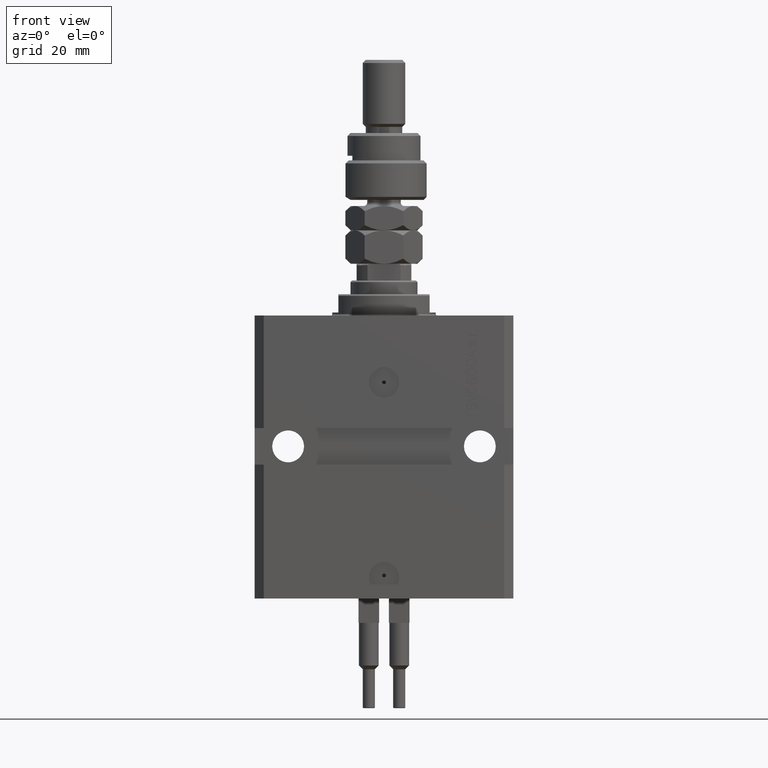
[diagram: clean part render]
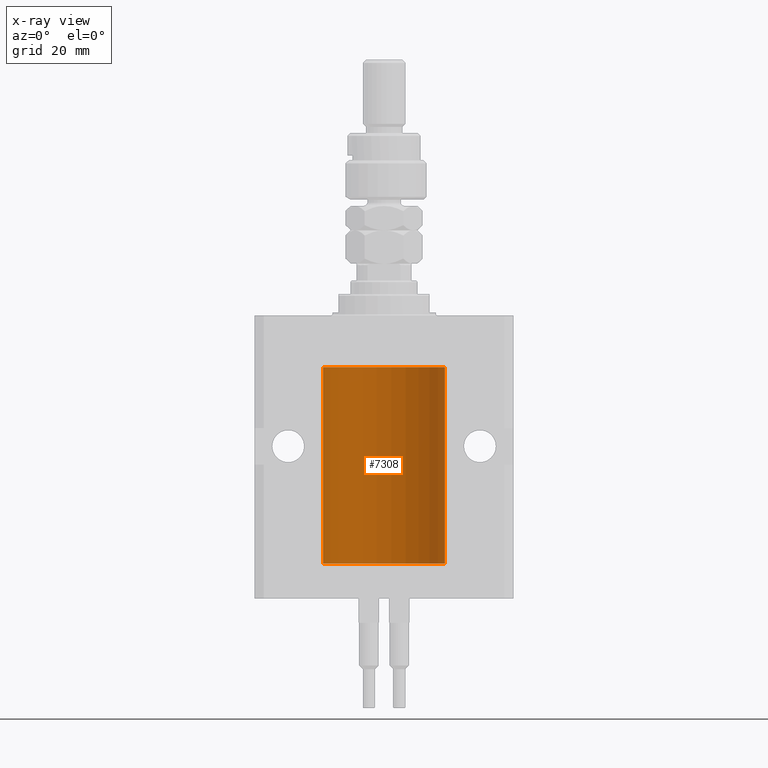
[diagram: x-ray — body ghosted, one internal face saturated and labeled with its STEP entity id]
A machine part, front view, then the same camera in x-ray: the body is ghosted and one INTERNAL B-rep face — a face not visible from any outside direction — is saturated and labeled: STEP entity #7308.
In plain terms, the highlighted cylindrical surface (partial cylindrical patch) has radius 20 mm, axis along (0, 0, 1).
Its self-contained STEP definition (entity closure, byte-faithful):
#780 = DIRECTION ( 'NONE',  ( -0.000000000000000000, -0.000000000000000000, 1.000000000000000000 ) ) ;
#785 = CARTESIAN_POINT ( 'NONE',  ( -19.99769349528941120, 0.3253804398728645242, -24.55855820727680339 ) ) ;
#1708 = CARTESIAN_POINT ( 'NONE',  ( -19.99253506710754991, 0.5587120480776742726, -79.32511620830248944 ) ) ;
#1848 = DIRECTION ( 'NONE',  ( 1.000000000000000000, 0.000000000000000000, 0.000000000000000000 ) ) ;
#3043 = ORIENTED_EDGE ( 'NONE', *, *, #45499, .F. ) ;
#3461 = VERTEX_POINT ( 'NONE', #42850 ) ;
#3499 = VECTOR ( 'NONE', #20952, 1000.000000000000000 ) ;
#4140 = LINE ( 'NONE', #12925, #3499 ) ;
#4440 = CARTESIAN_POINT ( 'NONE',  ( -19.99253506710754991, 0.5587120480776751608, -24.32511620830248589 ) ) ;
#5205 = CARTESIAN_POINT ( 'NONE',  ( -19.99023018003212471, 0.6250578794725500931, -24.16284809704970371 ) ) ;
#5758 = DIRECTION ( 'NONE',  ( 1.000000000000000000, 0.000000000000000000, 0.000000000000000000 ) ) ;
#6750 = AXIS2_PLACEMENT_3D ( 'NONE', #9887, #25938, #1848 ) ;
#7308 = ADVANCED_FACE ( 'NONE', ( #47801 ), #39774, .F. ) ;
#7990 = EDGE_CURVE ( 'NONE', #21036, #46071, #29907, .T. ) ;
#8343 = CARTESIAN_POINT ( 'NONE',  ( -20.00000000000000000, -2.867584836844214272E-15, -23.37500000000000000 ) ) ;
#8762 = VECTOR ( 'NONE', #46089, 1000.000000000000000 ) ;
#8834 = CARTESIAN_POINT ( 'NONE',  ( -19.99023380173166231, 0.6249420416828462832, -23.83670793056396064 ) ) ;
#9080 = CARTESIAN_POINT ( 'NONE',  ( -20.00000000000000000, 2.449293598294706513E-15, -81.59999999999999432 ) ) ;
#9702 = VECTOR ( 'NONE', #780, 1000.000000000000000 ) ;
#9887 = CARTESIAN_POINT ( 'NONE',  ( 0.000000000000000000, 0.000000000000000000, -17.00000000000000000 ) ) ;
#10137 = ORIENTED_EDGE ( 'NONE', *, *, #25457, .T. ) ;
#11148 = CARTESIAN_POINT ( 'NONE',  ( -19.99999999999999289, 0.08259581631026131909, -78.37499999999998579 ) ) ;
#11400 = CARTESIAN_POINT ( 'NONE',  ( -19.99638934703457238, 0.3843678041337651452, -78.50046362978099523 ) ) ;
#12459 = CARTESIAN_POINT ( 'NONE',  ( -20.00000000000010303, 3.580159278407742946E-13, -24.62500000000332889 ) ) ;
#12644 = AXIS2_PLACEMENT_3D ( 'NONE', #30343, #46114, #5758 ) ;
#12925 = CARTESIAN_POINT ( 'NONE',  ( 20.00000000000000000, 0.000000000000000000, -81.59999999999999432 ) ) ;
#12973 = CARTESIAN_POINT ( 'NONE',  ( -19.99638934703457593, 0.3843678041337688644, -23.50046362978100944 ) ) ;
#13059 = CARTESIAN_POINT ( 'NONE',  ( -20.00000000000000000, 2.449293598294706513E-15, -81.59999999999999432 ) ) ;
#14910 = VERTEX_POINT ( 'NONE', #17850 ) ;
#15110 = CARTESIAN_POINT ( 'NONE',  ( -20.00000000000000000, 2.449293598294706513E-15, -17.00000000000000000 ) ) ;
#15284 = CARTESIAN_POINT ( 'NONE',  ( -19.99766197842594551, 0.3150331617867603295, -78.45402070102504410 ) ) ;
#16946 = DIRECTION ( 'NONE',  ( -0.000000000000000000, -0.000000000000000000, 1.000000000000000000 ) ) ;
#16953 = ORIENTED_EDGE ( 'NONE', *, *, #31178, .T. ) ;
#17850 = CARTESIAN_POINT ( 'NONE',  ( -20.00000000000000000, -1.124177324826063808E-14, -78.37500000000000000 ) ) ;
#18005 = VERTEX_POINT ( 'NONE', #24067 ) ;
#19677 = CARTESIAN_POINT ( 'NONE',  ( -19.99023018003212471, 0.6250578794725522025, -79.16284809704971792 ) ) ;
#19927 = CARTESIAN_POINT ( 'NONE',  ( -19.99256581701871838, 0.5573276956901996870, -78.67348565770949165 ) ) ;
#20952 = DIRECTION ( 'NONE',  ( -0.000000000000000000, -0.000000000000000000, 1.000000000000000000 ) ) ;
#21036 = VERTEX_POINT ( 'NONE', #8343 ) ;
#22298 = CARTESIAN_POINT ( 'NONE',  ( -20.00000000000000000, 2.449293598294706513E-15, -81.59999999999999432 ) ) ;
#23180 = ORIENTED_EDGE ( 'NONE', *, *, #7990, .T. ) ;
#24067 = CARTESIAN_POINT ( 'NONE',  ( 20.00000000000000000, 0.000000000000000000, -17.00000000000000000 ) ) ;
#25457 = EDGE_CURVE ( 'NONE', #14910, #43699, #31448, .T. ) ;
#25643 = ORIENTED_EDGE ( 'NONE', *, *, #43207, .F. ) ;
#25938 = DIRECTION ( 'NONE',  ( 0.000000000000000000, 0.000000000000000000, 1.000000000000000000 ) ) ;
#26228 = ORIENTED_EDGE ( 'NONE', *, *, #30959, .T. ) ;
#28224 = CARTESIAN_POINT ( 'NONE',  ( -20.00000000000010303, 3.580159286679549072E-13, -79.62500000000332534 ) ) ;
#29100 = VECTOR ( 'NONE', #16946, 1000.000000000000000 ) ;
#29550 = EDGE_LOOP ( 'NONE', ( #3043, #36791, #16953, #26228, #25643, #23180, #33211, #10137 ) ) ;
#29813 = AXIS2_PLACEMENT_3D ( 'NONE', #31754, #47540, #47032 ) ;
#29907 = B_SPLINE_CURVE_WITH_KNOTS ( 'NONE', 3,
 ( #34745, #50543, #39903, #36012, #12973, #40659, #8834, #5205, #4440, #785, #48682, #12459 ),
 .UNSPECIFIED., .F., .F.,
 ( 4, 2, 2, 2, 2, 4 ),
 ( 5.848927291235706941E-19, 0.0002442693137305304075, 0.0004885386274610601645, 0.0009770772549221123059, 0.001465615882383164339, 0.001954154509844215938 ),
 .UNSPECIFIED. ) ;
#30343 = CARTESIAN_POINT ( 'NONE',  ( 0.000000000000000000, 0.000000000000000000, -81.59999999999999432 ) ) ;
#30959 = EDGE_CURVE ( 'NONE', #18005, #46518, #34050, .T. ) ;
#31178 = EDGE_CURVE ( 'NONE', #45805, #18005, #4140, .T. ) ;
#31448 = B_SPLINE_CURVE_WITH_KNOTS ( 'NONE', 3,
 ( #34685, #11148, #50739, #15284, #11400, #19927, #47350, #19677, #1708, #44669, #35699, #41062 ),
 .UNSPECIFIED., .F., .F.,
 ( 4, 2, 2, 2, 2, 4 ),
 ( 1.522880481566060999E-18, 0.0002442693137305179392, 0.0004885386274610343605, 0.0009770772549220966934, 0.001465615882383158918, 0.001954154509844221576 ),
 .UNSPECIFIED. ) ;
#31754 = CARTESIAN_POINT ( 'NONE',  ( 0.000000000000000000, 0.000000000000000000, -81.59999999999999432 ) ) ;
#31899 = EDGE_CURVE ( 'NONE', #14910, #46071, #48769, .T. ) ;
#32372 = LINE ( 'NONE', #9080, #9702 ) ;
#33211 = ORIENTED_EDGE ( 'NONE', *, *, #31899, .F. ) ;
#34050 = CIRCLE ( 'NONE', #6750, 20.00000000000000000 ) ;
#34685 = CARTESIAN_POINT ( 'NONE',  ( -20.00000000000000000, -1.124177324826063808E-14, -78.37500000000000000 ) ) ;
#34745 = CARTESIAN_POINT ( 'NONE',  ( -20.00000000000000000, -2.867584836844214272E-15, -23.37500000000000000 ) ) ;
#34962 = CIRCLE ( 'NONE', #12644, 20.00000000000000000 ) ;
#35445 = CARTESIAN_POINT ( 'NONE',  ( 20.00000000000000000, 0.000000000000000000, -81.59999999999999432 ) ) ;
#35699 = CARTESIAN_POINT ( 'NONE',  ( -20.00000000000000355, 0.1631688615953343080, -79.62499999999984368 ) ) ;
#36012 = CARTESIAN_POINT ( 'NONE',  ( -19.99766197842594906, 0.3150331617867667688, -23.45402070102505476 ) ) ;
#36638 = EDGE_CURVE ( 'NONE', #45805, #3461, #34962, .T. ) ;
#36791 = ORIENTED_EDGE ( 'NONE', *, *, #36638, .F. ) ;
#37562 = LINE ( 'NONE', #22298, #8762 ) ;
#39774 = CYLINDRICAL_SURFACE ( 'NONE', #29813, 20.00000000000000000 ) ;
#39903 = CARTESIAN_POINT ( 'NONE',  ( -19.99947377218718714, 0.1636439183262877461, -23.39126364004656011 ) ) ;
#40659 = CARTESIAN_POINT ( 'NONE',  ( -19.99256581701871482, 0.5573276956902001311, -23.67348565770948809 ) ) ;
#41062 = CARTESIAN_POINT ( 'NONE',  ( -20.00000000000010303, 3.580159286679549072E-13, -79.62500000000332534 ) ) ;
#42850 = CARTESIAN_POINT ( 'NONE',  ( -20.00000000000000000, 2.449293598294706513E-15, -81.59999999999999432 ) ) ;
#43207 = EDGE_CURVE ( 'NONE', #21036, #46518, #37562, .T. ) ;
#43699 = VERTEX_POINT ( 'NONE', #28224 ) ;
#44669 = CARTESIAN_POINT ( 'NONE',  ( -19.99769349528941831, 0.3253804398728615266, -79.55855820727680339 ) ) ;
#45499 = EDGE_CURVE ( 'NONE', #3461, #43699, #32372, .T. ) ;
#45765 = CARTESIAN_POINT ( 'NONE',  ( -20.00000000000010303, 3.580159278407742946E-13, -24.62500000000332889 ) ) ;
#45805 = VERTEX_POINT ( 'NONE', #35445 ) ;
#46071 = VERTEX_POINT ( 'NONE', #45765 ) ;
#46089 = DIRECTION ( 'NONE',  ( -0.000000000000000000, -0.000000000000000000, 1.000000000000000000 ) ) ;
#46114 = DIRECTION ( 'NONE',  ( 0.000000000000000000, 0.000000000000000000, 1.000000000000000000 ) ) ;
#46518 = VERTEX_POINT ( 'NONE', #15110 ) ;
#47032 = DIRECTION ( 'NONE',  ( 1.000000000000000000, 0.000000000000000000, 0.000000000000000000 ) ) ;
#47350 = CARTESIAN_POINT ( 'NONE',  ( -19.99023380173166231, 0.6249420416828449509, -78.83670793056396064 ) ) ;
#47540 = DIRECTION ( 'NONE',  ( -0.000000000000000000, -0.000000000000000000, 1.000000000000000000 ) ) ;
#47801 = FACE_OUTER_BOUND ( 'NONE', #29550, .T. ) ;
#48682 = CARTESIAN_POINT ( 'NONE',  ( -20.00000000000000000, 0.1631688615953320320, -24.62499999999985434 ) ) ;
#48769 = LINE ( 'NONE', #13059, #29100 ) ;
#50543 = CARTESIAN_POINT ( 'NONE',  ( -19.99999999999999645, 0.08259581631026780002, -23.37500000000000000 ) ) ;
#50739 = CARTESIAN_POINT ( 'NONE',  ( -19.99947377218718003, 0.1636439183262797525, -78.39126364004653169 ) ) ;